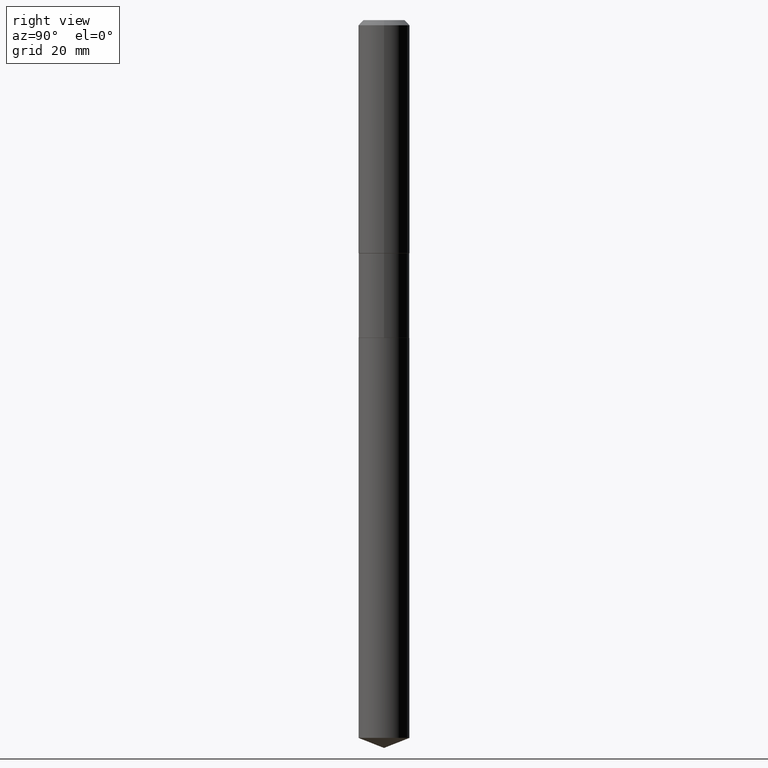
[diagram: clean part render]
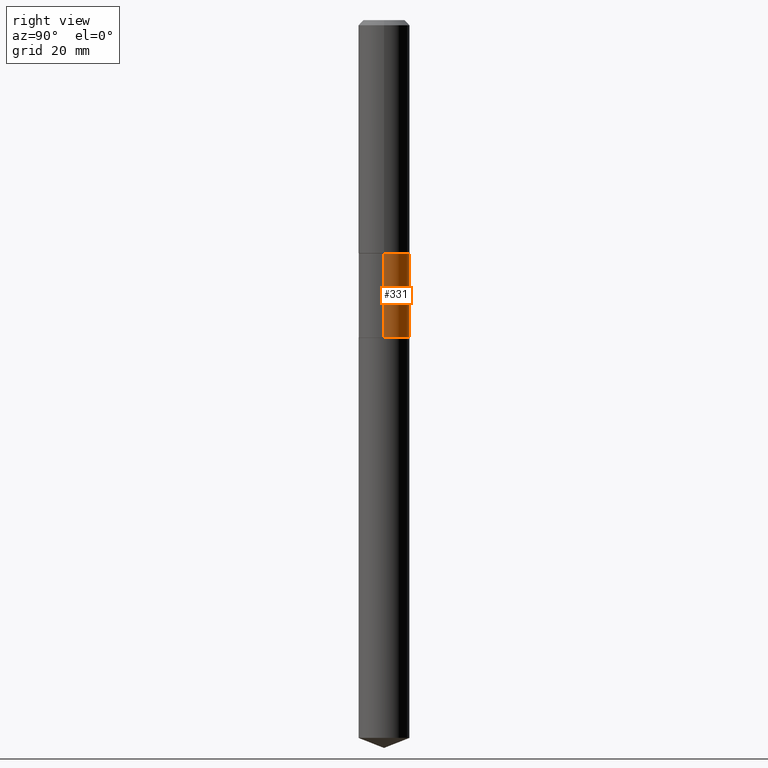
[diagram: same view with one face highlighted and labeled with its STEP entity id]
A machine part, right view. The second image highlights one B-rep face of the part: STEP entity #331.
In plain terms, the highlighted cylindrical surface (edge-blend (fillet) strip) has radius 4.9505 mm, axis along (-0, 0, 1).
Its self-contained STEP definition (entity closure, byte-faithful):
#3 = AXIS2_PLACEMENT_3D ( 'NONE', #121, #6, #266 ) ;
#6 = DIRECTION ( 'NONE',  ( -2.445468806185136597E-29, 3.491481338843145583E-15, 1.000000000000000000 ) ) ;
#36 = LINE ( 'NONE', #46, #316 ) ;
#41 = VECTOR ( 'NONE', #454, 39.37007874015748143 ) ;
#46 = CARTESIAN_POINT ( 'NONE',  ( 0.1948999999999999344, -1.360979425881052894E-15, 9.503668536026277414E-30 ) ) ;
#69 = CARTESIAN_POINT ( 'NONE',  ( -0.1948999999999999899, -6.003475869129541133E-15, -2.440399999999999014 ) ) ;
#73 = LINE ( 'NONE', #457, #41 ) ;
#76 = EDGE_CURVE ( 'NONE', #365, #390, #298, .T. ) ;
#117 = CYLINDRICAL_SURFACE ( 'NONE', #268, 0.1948999999999999344 ) ;
#121 = CARTESIAN_POINT ( 'NONE',  ( 5.967922074614205116E-29, -8.520611059312809095E-15, -2.440399999999999014 ) ) ;
#122 = CIRCLE ( 'NONE', #3, 0.1948999999999999899 ) ;
#140 = CARTESIAN_POINT ( 'NONE',  ( 4.381791006922526060E-29, -6.256036262939144736E-15, -1.791799999999999171 ) ) ;
#145 = CARTESIAN_POINT ( 'NONE',  ( -0.1948999999999999067, -6.003475869129541922E-15, -1.791799999999999171 ) ) ;
#147 = DIRECTION ( 'NONE',  ( -2.445468806185136597E-29, 3.491481338843145583E-15, 1.000000000000000000 ) ) ;
#153 = DIRECTION ( 'NONE',  ( 1.000000000000000000, -6.982962677686266711E-15, 4.876176775795936914E-29 ) ) ;
#204 = ORIENTED_EDGE ( 'NONE', *, *, #431, .T. ) ;
#205 = AXIS2_PLACEMENT_3D ( 'NONE', #140, #446, #249 ) ;
#214 = DIRECTION ( 'NONE',  ( -2.445468806185136877E-29, 3.491481338843145188E-15, 1.000000000000000000 ) ) ;
#216 = FACE_OUTER_BOUND ( 'NONE', #351, .T. ) ;
#224 = CARTESIAN_POINT ( 'NONE',  ( 0.1948999999999999067, -7.617015688820197828E-15, -1.791799999999999171 ) ) ;
#249 = DIRECTION ( 'NONE',  ( 1.000000000000000000, -6.982962677686267499E-15, 0.000000000000000000 ) ) ;
#251 = EDGE_CURVE ( 'NONE', #271, #365, #36, .T. ) ;
#266 = DIRECTION ( 'NONE',  ( 1.000000000000000000, -6.982962677686269866E-15, 0.000000000000000000 ) ) ;
#268 = AXIS2_PLACEMENT_3D ( 'NONE', #369, #147, #153 ) ;
#269 = VERTEX_POINT ( 'NONE', #69 ) ;
#271 = VERTEX_POINT ( 'NONE', #359 ) ;
#298 = CIRCLE ( 'NONE', #205, 0.1948999999999999067 ) ;
#316 = VECTOR ( 'NONE', #214, 39.37007874015748143 ) ;
#331 = ADVANCED_FACE ( 'NONE', ( #216 ), #117, .T. ) ;
#351 = EDGE_LOOP ( 'NONE', ( #204, #403, #392, #442 ) ) ;
#359 = CARTESIAN_POINT ( 'NONE',  ( 0.1948999999999999899, -9.881590485193863765E-15, -2.440399999999999014 ) ) ;
#365 = VERTEX_POINT ( 'NONE', #224 ) ;
#369 = CARTESIAN_POINT ( 'NONE',  ( 0.000000000000000000, 0.000000000000000000, 0.000000000000000000 ) ) ;
#390 = VERTEX_POINT ( 'NONE', #145 ) ;
#391 = EDGE_CURVE ( 'NONE', #269, #390, #73, .T. ) ;
#392 = ORIENTED_EDGE ( 'NONE', *, *, #76, .F. ) ;
#403 = ORIENTED_EDGE ( 'NONE', *, *, #391, .T. ) ;
#431 = EDGE_CURVE ( 'NONE', #271, #269, #122, .T. ) ;
#442 = ORIENTED_EDGE ( 'NONE', *, *, #251, .F. ) ;
#446 = DIRECTION ( 'NONE',  ( -2.445468806185136597E-29, 3.491481338843145583E-15, 1.000000000000000000 ) ) ;
#454 = DIRECTION ( 'NONE',  ( -2.445468806185136877E-29, 3.491481338843145188E-15, 1.000000000000000000 ) ) ;
#457 = CARTESIAN_POINT ( 'NONE',  ( -0.1948999999999999344, 1.384847791996434796E-15, -9.587004490906808522E-30 ) ) ;